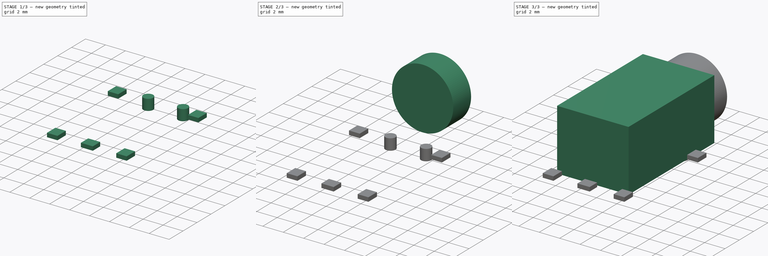
[diagram: build sequence overview — one tinted view per stage of 3, left to right]
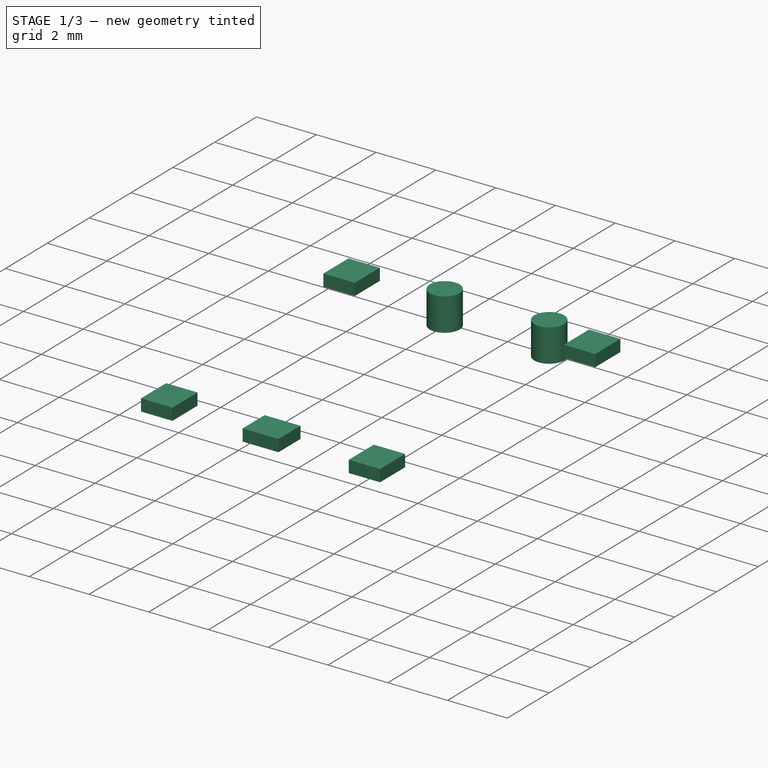
[diagram: stage 1 of 3 — iso view after this stage's code; geometry added in this stage tinted green]
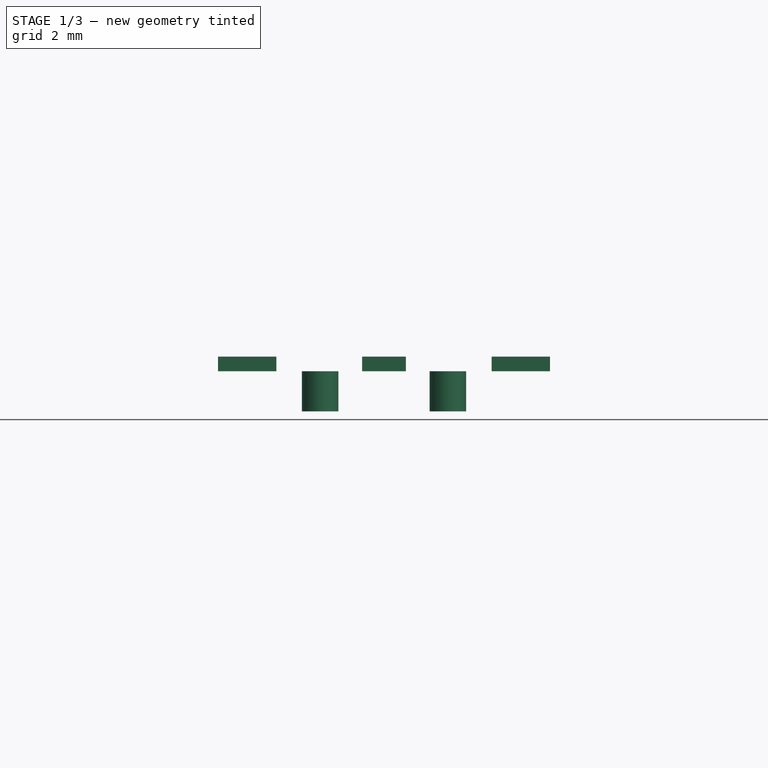
[diagram: stage 1 of 3 — front view after this stage's code; geometry added in this stage tinted green]
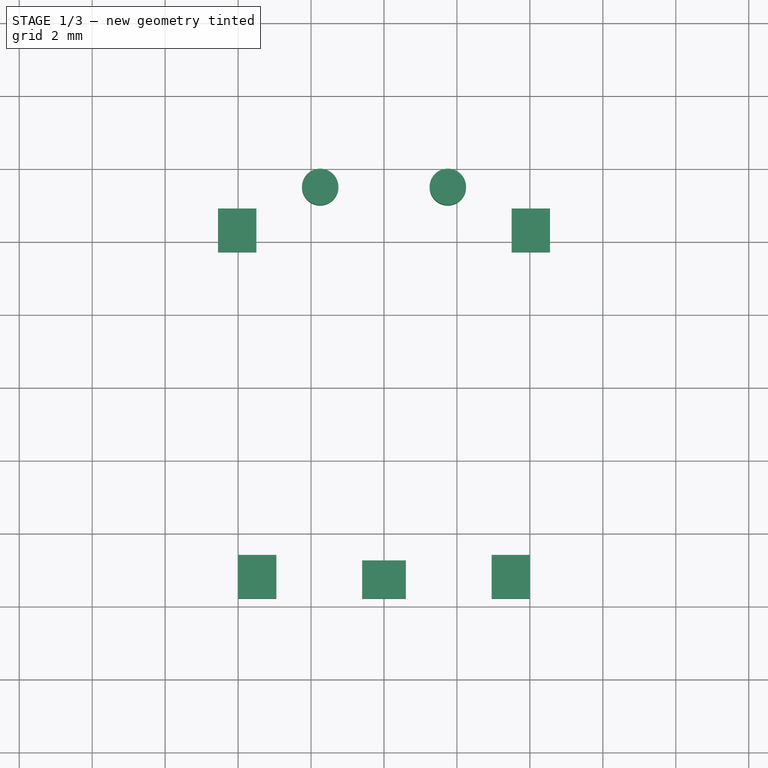
[diagram: stage 1 of 3 — top view after this stage's code; geometry added in this stage tinted green]
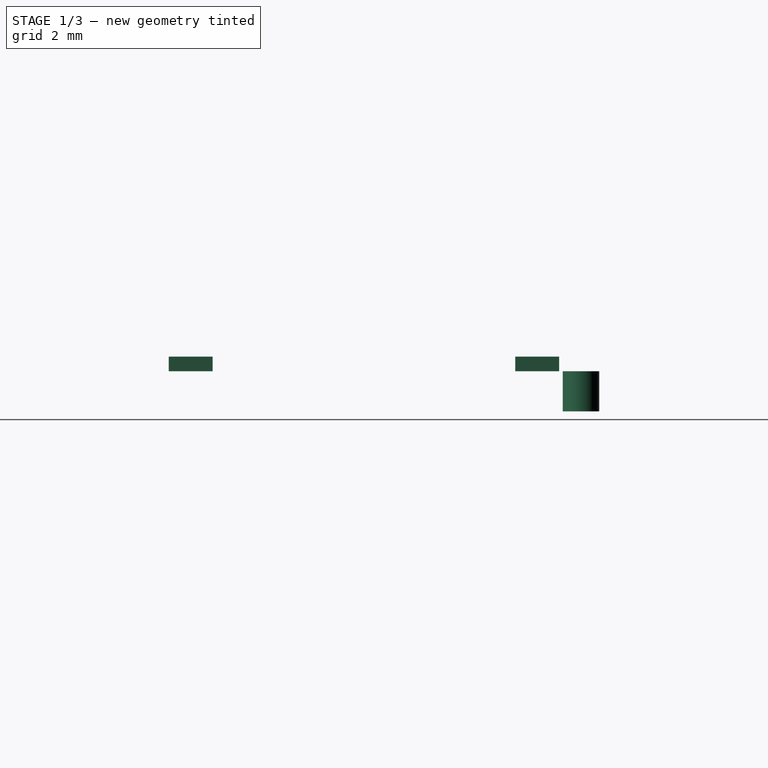
[diagram: stage 1 of 3 — right view after this stage's code; geometry added in this stage tinted green]
FCSTD DOCUMENT  (FreeCAD 0.16R6712 (Git))
Label: 1503_13_VP3
License: All rights reserved
LicenseURL: http://en.wikipedia.org/wiki/All_rights_reserved
objects: Sketcher::SketchObject×4, PartDesign::Pad×4, Part::Compound×1
note: 13 computed .brp shape members not serialized (recipe doc carries the construction recipe); baked Part::Feature solids carry a one-line shape summary decoded from their .brp

FEATURE [Sketcher::SketchObject] Sketch002
  sketch-geometry (21):
    g0: LineSegment StartX=-4.55 StartY=-5.1 StartZ=0 EndX=-3.5 EndY=-5.1 EndZ=0
    g1: LineSegment StartX=-3.5 StartY=-5.1 StartZ=0 EndX=-3.5 EndY=-6.3 EndZ=0
    g2: LineSegment StartX=-3.5 StartY=-6.3 StartZ=0 EndX=-4.55 EndY=-6.3 EndZ=0
    g3: LineSegment StartX=-4.55 StartY=-6.3 StartZ=0 EndX=-4.55 EndY=-5.1 EndZ=0
    g4: LineSegment StartX=-2.95 StartY=-15.8 StartZ=0 EndX=-4 EndY=-15.8 EndZ=0
    g5: LineSegment StartX=-4 StartY=-15.8 StartZ=0 EndX=-4 EndY=-14.6 EndZ=0
    g6: LineSegment StartX=-4 StartY=-14.6 StartZ=0 EndX=-2.95 EndY=-14.6 EndZ=0
    g7: LineSegment StartX=-2.95 StartY=-14.6 StartZ=0 EndX=-2.95 EndY=-15.8 EndZ=0
    g8: LineSegment StartX=-0.6 StartY=-14.75 StartZ=0 EndX=0.6 EndY=-14.75 EndZ=0
    g9: LineSegment StartX=0.6 StartY=-14.75 StartZ=0 EndX=0.6 EndY=-15.8 EndZ=0
    g10: LineSegment StartX=0.6 StartY=-15.8 StartZ=0 EndX=-0.6 EndY=-15.8 EndZ=0
    g11: LineSegment StartX=-0.6 StartY=-15.8 StartZ=0 EndX=-0.6 EndY=-14.75 EndZ=0
    g12: LineSegment StartX=2.95 StartY=-14.6 StartZ=0 EndX=4 EndY=-14.6 EndZ=0
    g13: LineSegment StartX=4 StartY=-14.6 StartZ=0 EndX=4 EndY=-15.8 EndZ=0
    g14: LineSegment StartX=4 StartY=-15.8 StartZ=0 EndX=2.95 EndY=-15.8 EndZ=0
    g15: LineSegment StartX=2.95 StartY=-15.8 StartZ=0 EndX=2.95 EndY=-14.6 EndZ=0
    g16: LineSegment StartX=3.5 StartY=-5.1 StartZ=0 EndX=4.55 EndY=-5.1 EndZ=0
    g17: LineSegment StartX=4.55 StartY=-5.1 StartZ=0 EndX=4.55 EndY=-6.3 EndZ=0
    g18: LineSegment StartX=4.55 StartY=-6.3 StartZ=0 EndX=3.5 EndY=-6.3 EndZ=0
    g19: LineSegment StartX=3.5 StartY=-6.3 StartZ=0 EndX=3.5 EndY=-5.1 EndZ=0
    g20: LineSegment [constr] StartX=3.5 StartY=-5.7 StartZ=0 EndX=4.55 EndY=-5.7 EndZ=0
  constraints (62):
    c: Coincident(g0,g1)
    c: Coincident(g1,g2)
    c: Coincident(g2,g3)
    c: Coincident(g3,g0)
    c: Horizontal(g0)
    c: Horizontal(g2)
    c: Vertical(g1)
    c: Vertical(g3)
    c: Coincident(g4,g5)
    c: Coincident(g5,g6)
    c: Coincident(g6,g7)
    c: Coincident(g7,g4)
    c: Horizontal(g4)
    c: Horizontal(g6)
    c: Vertical(g5)
    c: Vertical(g7)
    c: Coincident(g8,g9)
    c: Coincident(g9,g10)
    c: Coincident(g10,g11)
    c: Coincident(g11,g8)
    c: Horizontal(g8)
    c: Horizontal(g10)
    c: Vertical(g9)
    c: Vertical(g11)
    c: Coincident(g12,g13)
    c: Coincident(g13,g14)
    c: Coincident(g14,g15)
    c: Coincident(g15,g12)
    c: Horizontal(g12)
    c: Horizontal(g14)
    c: Vertical(g13)
    c: Vertical(g15)
    c: Coincident(g16,g17)
    c: Coincident(g17,g18)
    c: Coincident(g18,g19)
    c: Coincident(g19,g16)
    c: Horizontal(g16)
    c: Horizontal(g18)
    c: Vertical(g17)
    c: Vertical(g19)
    c: DistanceY(g3,g3) = 1.2
    c: DistanceX(g0,g0) = 1.05
    c: Equal(g3,g5)
    c: Equal(g5,g10)
    c: Equal(g10,g13)
    c: Equal(g13,g17)
    c: Equal(g18,g14)
    c: Equal(g14,g9)
    c: Equal(g9,g4)
    c: Equal(g4,g2)
    c: Symmetric(g16,g0,g-2)
    c: DistanceX(g0,g16) = 7
    c: Symmetric(g4,g13,g-2)
    c: DistanceX(g4,g13) = 8
    c: DistanceY(g13,g-1) = 15.8
    c: Symmetric(g9,g10,g-2)
    c: DistanceY(g9,g-1) = 15.8
    c: PointOnObject(g20,g19)
    c: PointOnObject(g20,g17)
    c: Horizontal(g20)
    c: Symmetric(g17,g16,g20)
    c: DistanceY(g20,g-1) = 5.7
FEATURE [PartDesign::Pad] Pad002
  Length = 0.4
  Length2 = 100
  Sketch = -> Sketch002
  Type = 0
FEATURE [Sketcher::SketchObject] Sketch003
  sketch-geometry (2):
    g0: Circle CenterX=-1.75 CenterY=-4.5 CenterZ=0 NormalX=0 NormalY=0 NormalZ=1 Radius=0.5
    g1: Circle CenterX=1.75 CenterY=-4.5 CenterZ=0 NormalX=0 NormalY=0 NormalZ=1 Radius=0.5
  constraints (5):
    c: Equal(g1,g0)
    c: Radius(g1) = 0.5
    c: Symmetric(g1,g0,g-2)
    c: DistanceX(g0,g1) = 3.5
    c: DistanceY(g0,g-1) = 4.5
FEATURE [PartDesign::Pad] Pad003
  Length = 1.1
  Length2 = 100
  Reversed = true
  Sketch = -> Sketch003
  Type = 0
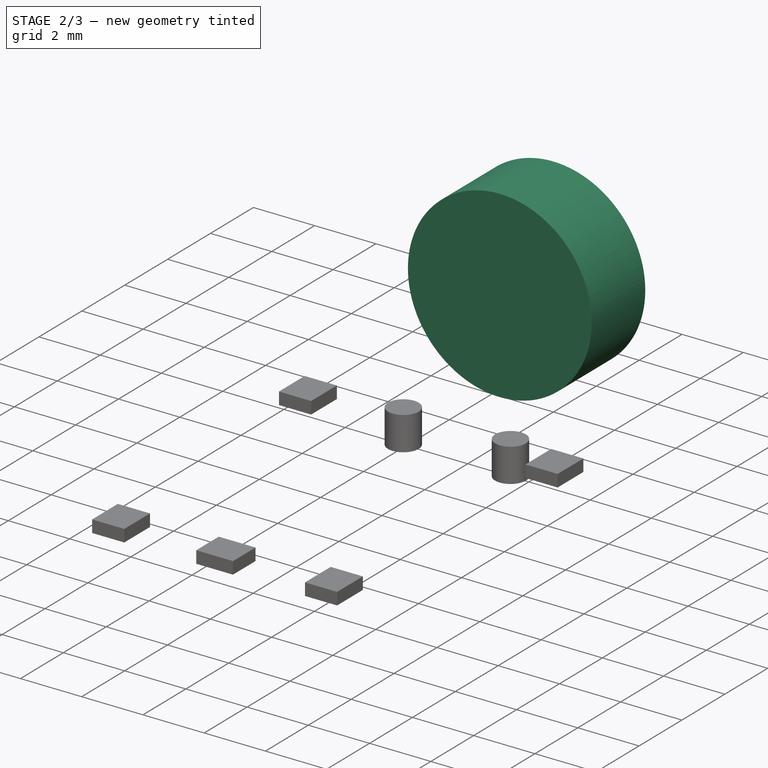
[diagram: stage 2 of 3 — iso view after this stage's code; geometry added in this stage tinted green]
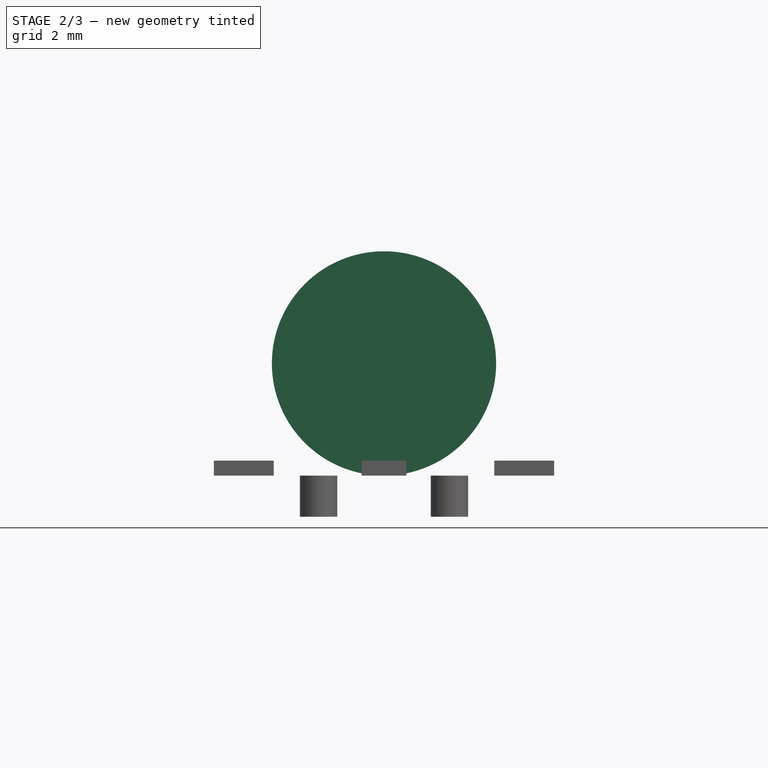
[diagram: stage 2 of 3 — front view after this stage's code; geometry added in this stage tinted green]
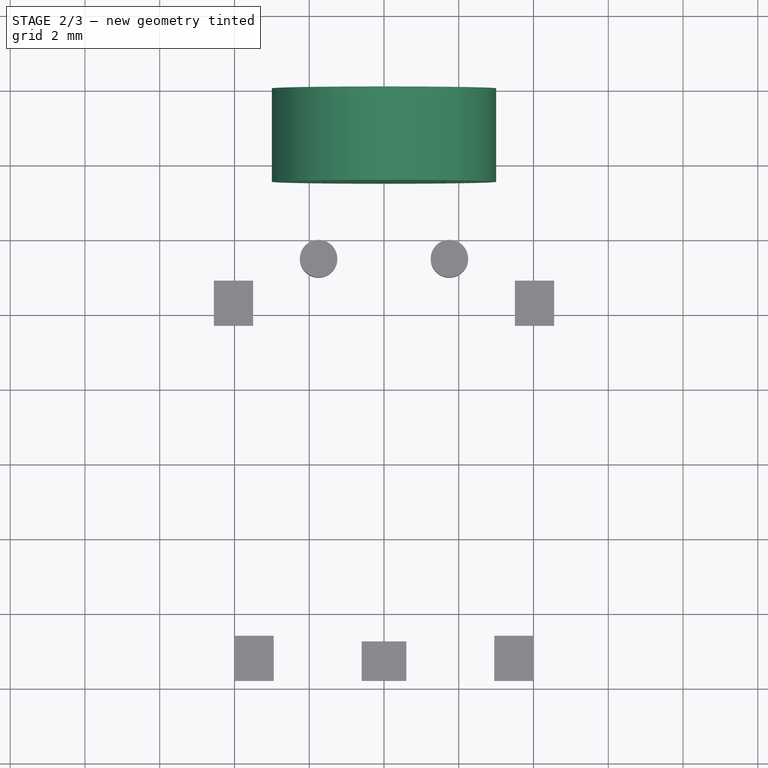
[diagram: stage 2 of 3 — top view after this stage's code; geometry added in this stage tinted green]
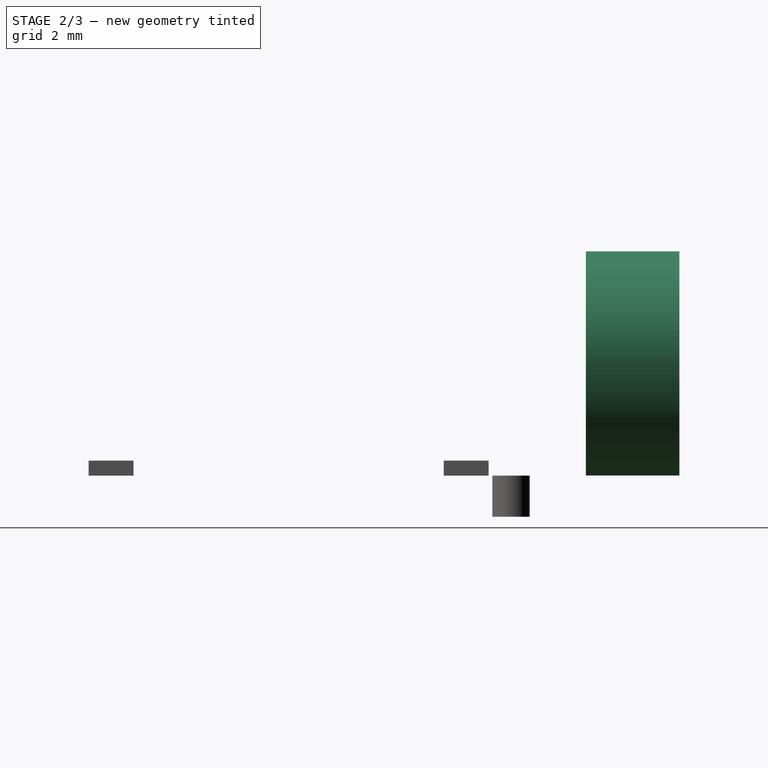
[diagram: stage 2 of 3 — right view after this stage's code; geometry added in this stage tinted green]
FEATURE [Sketcher::SketchObject] Sketch001
  Placement = pos=(0,0,0) rot=(1,0,0;1.5708rad)
  sketch-geometry (1):
    g0: Circle CenterX=0 CenterY=3 CenterZ=0 NormalX=0 NormalY=0 NormalZ=1 Radius=3
  constraints (3):
    c: PointOnObject(g0,g-2)
    c: Radius(g0) = 3
    c: DistanceY(g-1,g0) = 3
FEATURE [PartDesign::Pad] Pad001
  Length = 2.5
  Length2 = 100
  Placement = pos=(0,0,0) rot=(1,0,0;1.5708rad)
  Sketch = -> Sketch001
  Type = 0
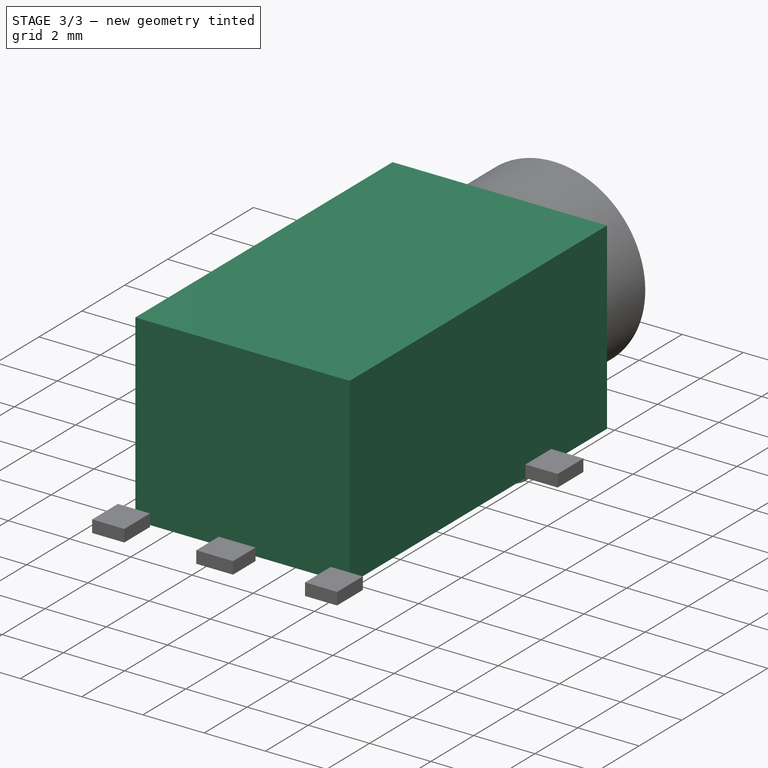
[diagram: stage 3 of 3 — iso view after this stage's code; geometry added in this stage tinted green]
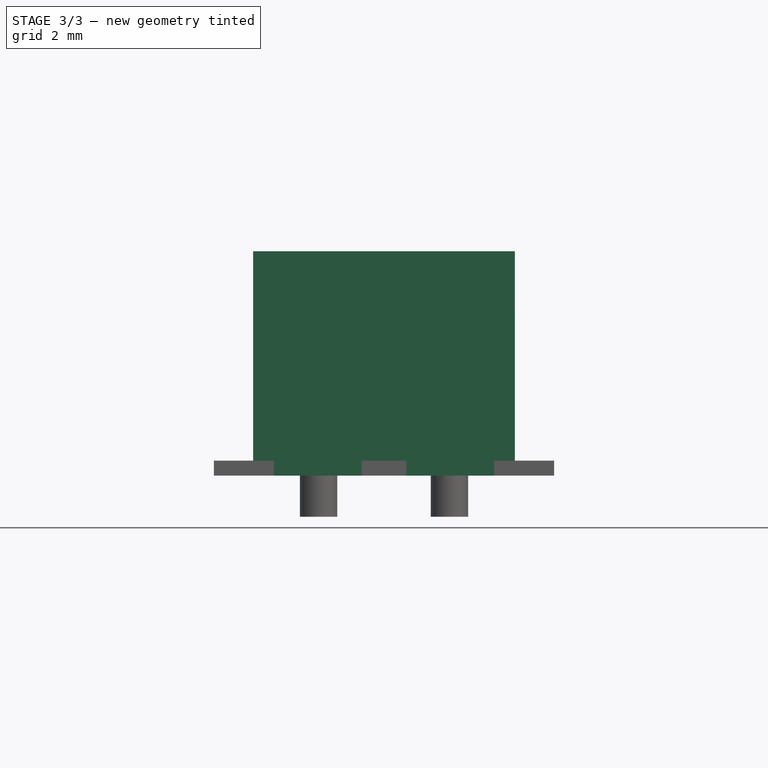
[diagram: stage 3 of 3 — front view after this stage's code; geometry added in this stage tinted green]
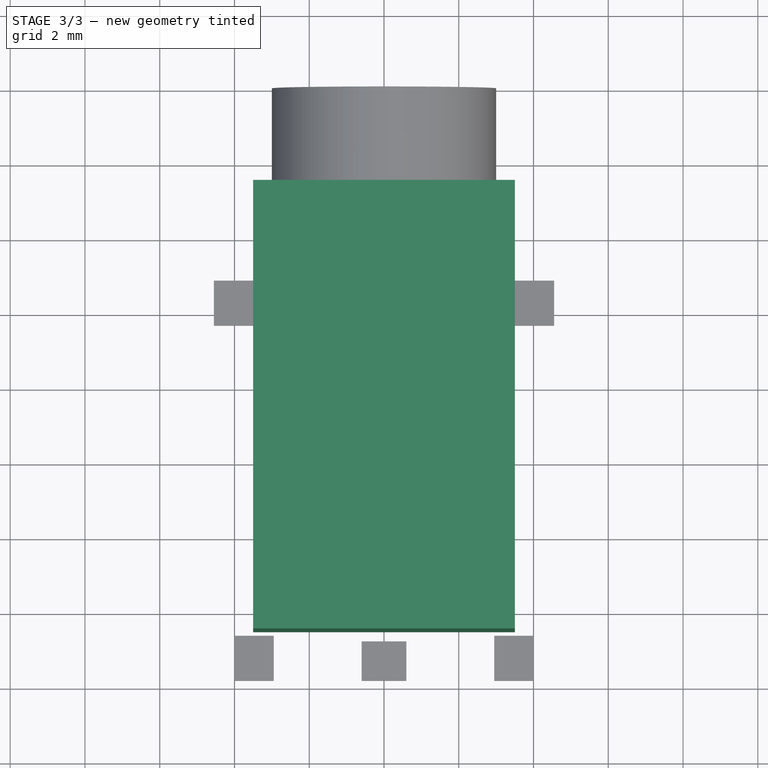
[diagram: stage 3 of 3 — top view after this stage's code; geometry added in this stage tinted green]
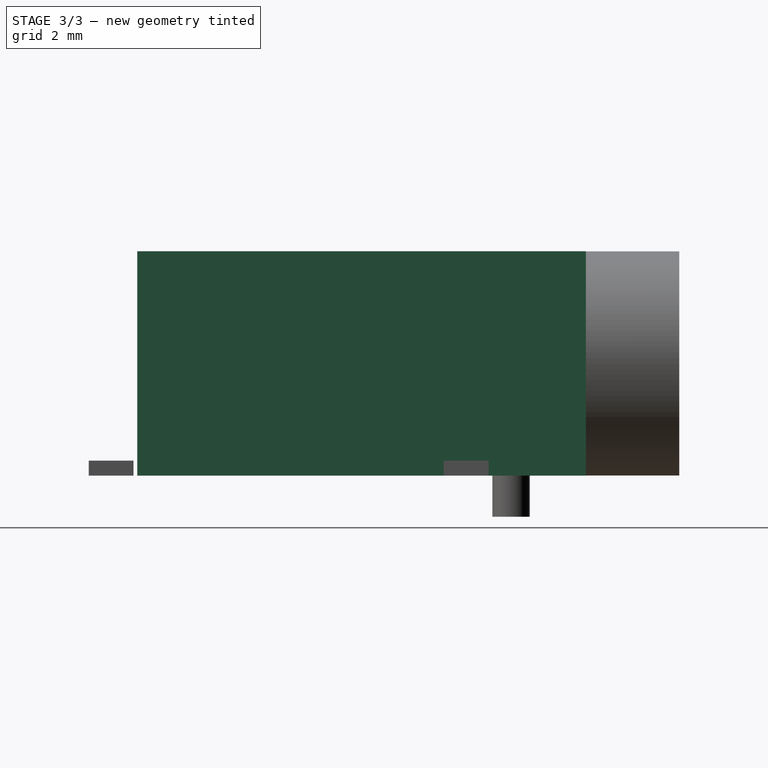
[diagram: stage 3 of 3 — right view after this stage's code; geometry added in this stage tinted green]
FEATURE [Sketcher::SketchObject] Sketch
  sketch-geometry (8):
    g0: LineSegment [constr] StartX=-3 StartY=0 StartZ=0 EndX=3 EndY=0 EndZ=0
    g1: LineSegment [constr] StartX=3 StartY=0 StartZ=0 EndX=3 EndY=-2.5 EndZ=0
    g2: LineSegment [constr] StartX=3 StartY=-2.5 StartZ=0 EndX=-3 EndY=-2.5 EndZ=0
    g3: LineSegment [constr] StartX=-3 StartY=-2.5 StartZ=0 EndX=-3 EndY=0 EndZ=0
    g4: LineSegment StartX=-3.5 StartY=-2.5 StartZ=0 EndX=3.5 EndY=-2.5 EndZ=0
    g5: LineSegment StartX=3.5 StartY=-2.5 StartZ=0 EndX=3.5 EndY=-14.5 EndZ=0
    g6: LineSegment StartX=3.5 StartY=-14.5 StartZ=0 EndX=-3.5 EndY=-14.5 EndZ=0
    g7: LineSegment StartX=-3.5 StartY=-14.5 StartZ=0 EndX=-3.5 EndY=-2.5 EndZ=0
  constraints (24):
    c: Coincident(g0,g1)
    c: Coincident(g1,g2)
    c: Coincident(g2,g3)
    c: Coincident(g3,g0)
    c: Horizontal(g0)
    c: Horizontal(g2)
    c: Vertical(g1)
    c: Vertical(g3)
    c: PointOnObject(g0,g-1)
    c: Symmetric(g1,g2,g-2)
    c: DistanceX(g0,g0) = 6
    c: DistanceY(g1,g1) = 2.5
    c: Coincident(g4,g5)
    c: Coincident(g5,g6)
    c: Coincident(g6,g7)
    c: Coincident(g7,g4)
    c: Horizontal(g4)
    c: Horizontal(g6)
    c: Vertical(g5)
    c: Vertical(g7)
    c: Symmetric(g5,g6,g-2)
    c: DistanceX(g6,g6) = 7
    c: DistanceY(g5,g5) = 12
    c: PointOnObject(g1,g4)
FEATURE [PartDesign::Pad] Pad
  Length = 6
  Length2 = 100
  Sketch = -> Sketch
  Type = 0
FEATURE [Part::Compound] Compound  label="1503 13 VP3"
  Links = -> [Pad,Pad003,Pad002,Pad001]
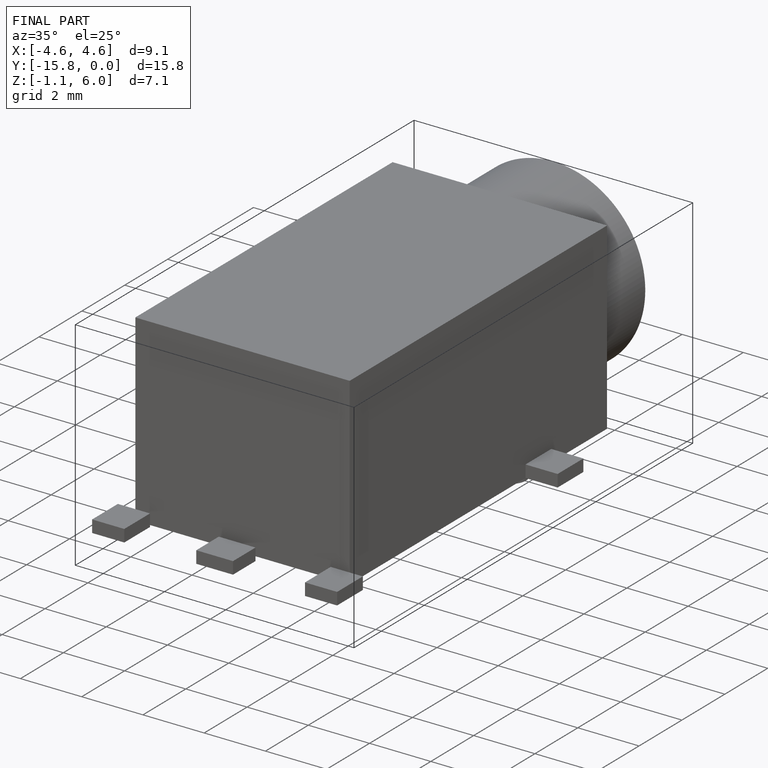
[diagram: finished part — iso view with bounding-box wireframe]
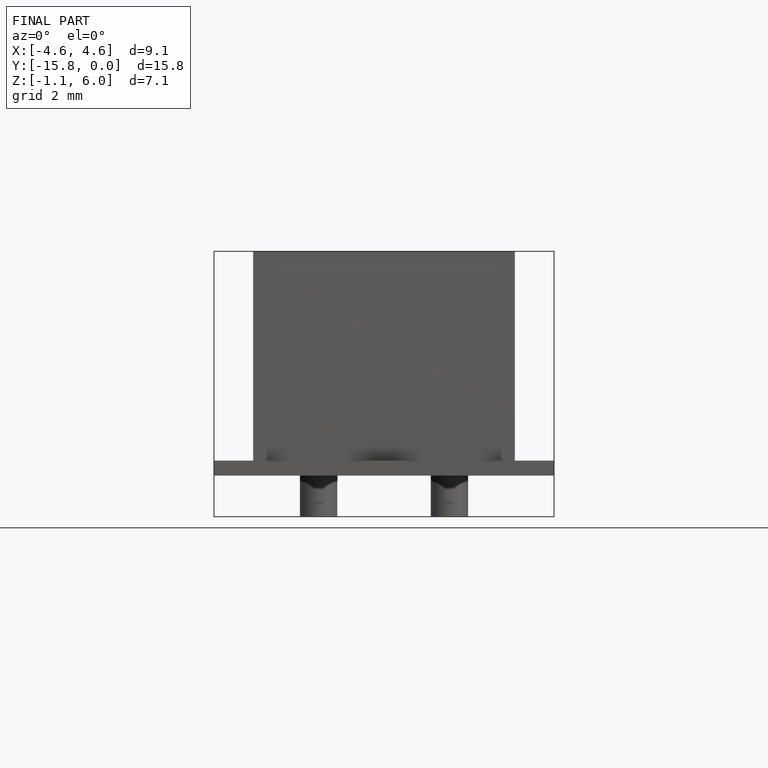
[diagram: finished part — front view with bounding-box wireframe]
